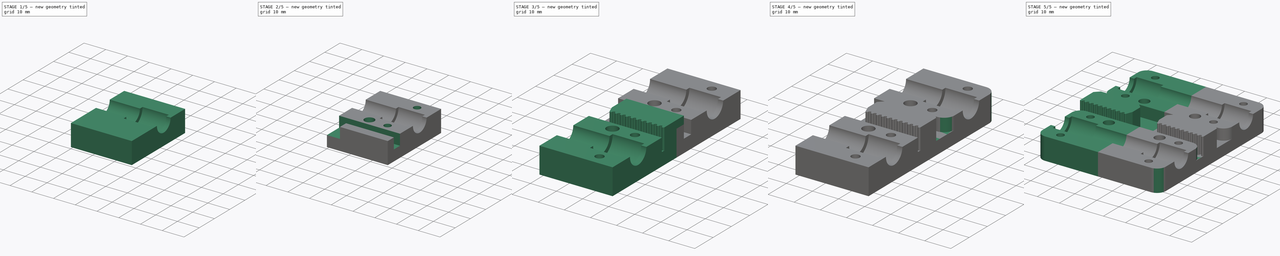
[diagram: build sequence overview — one tinted view per stage of 5, left to right]
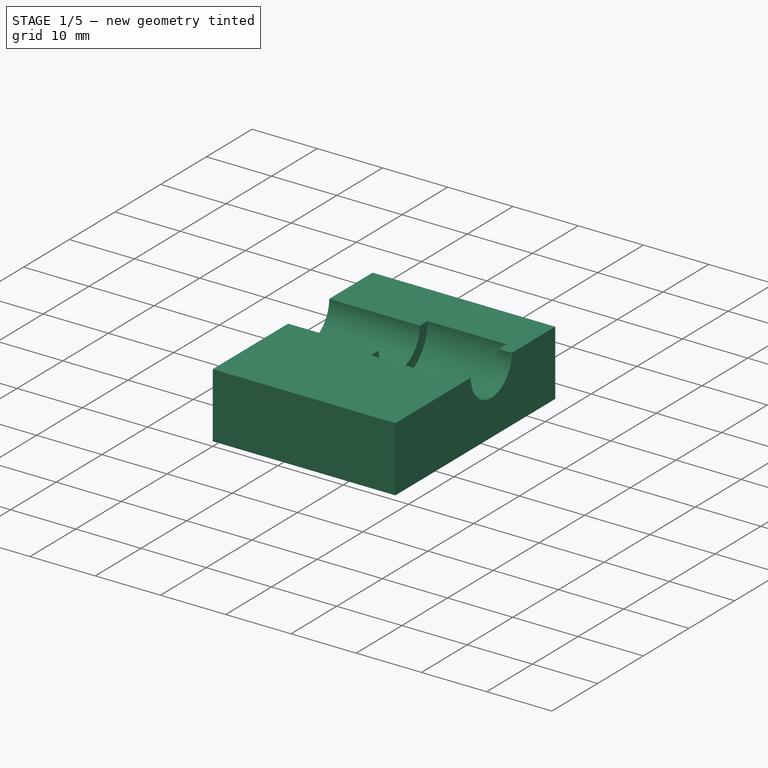
[diagram: stage 1 of 5 — iso view after this stage's code; geometry added in this stage tinted green]
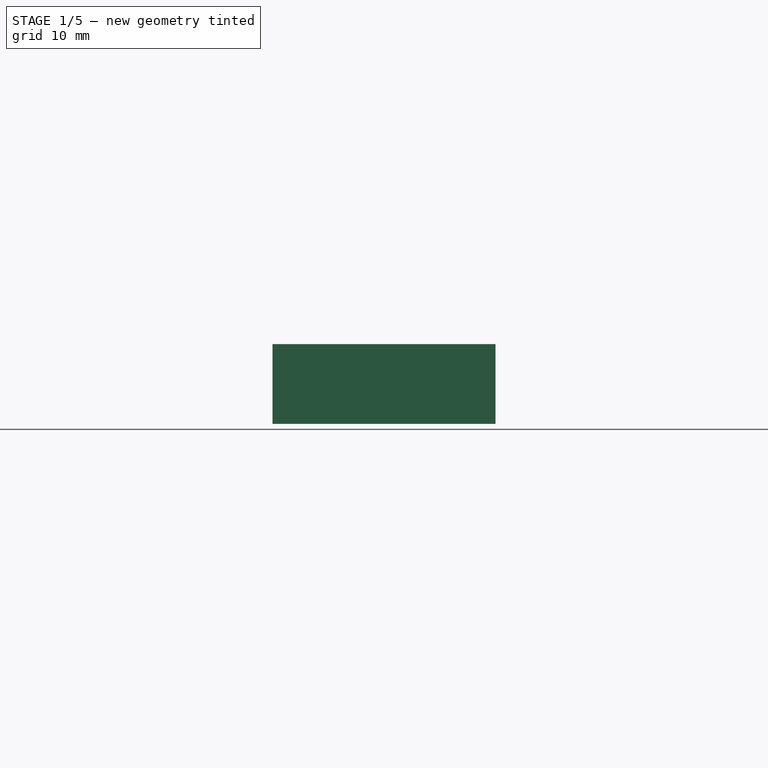
[diagram: stage 1 of 5 — front view after this stage's code; geometry added in this stage tinted green]
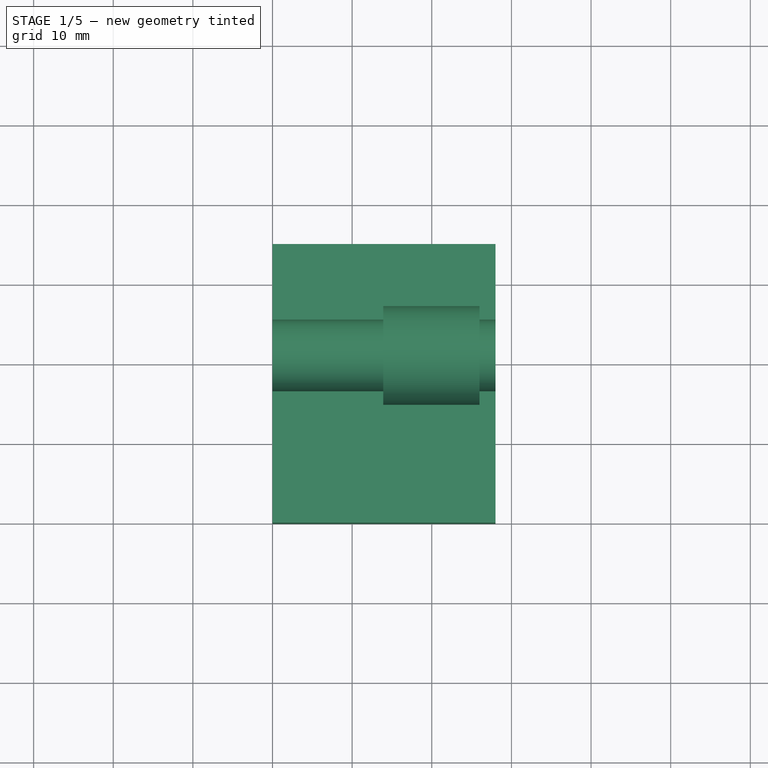
[diagram: stage 1 of 5 — top view after this stage's code; geometry added in this stage tinted green]
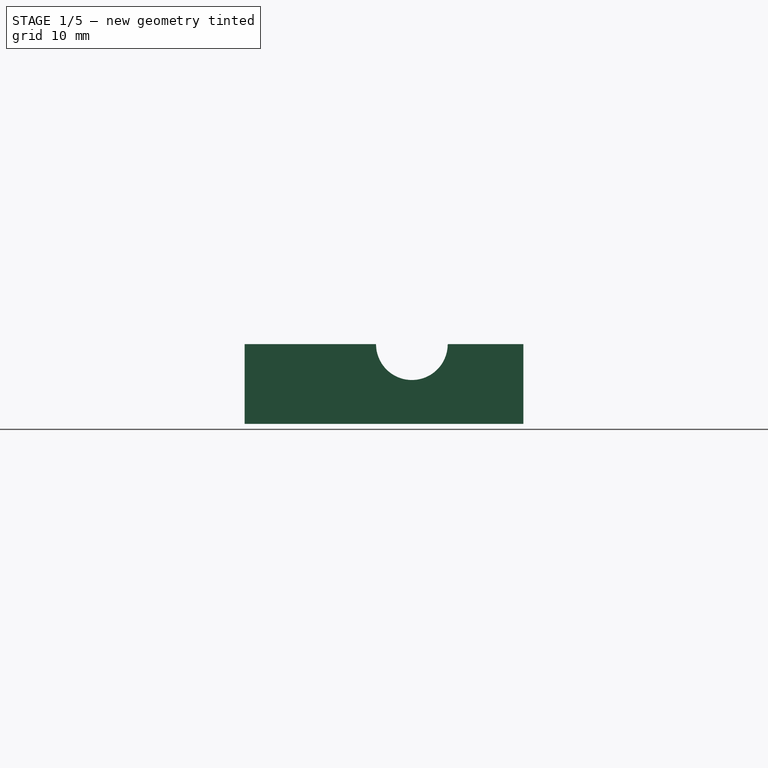
[diagram: stage 1 of 5 — right view after this stage's code; geometry added in this stage tinted green]
FCSTD DOCUMENT  (FreeCAD 0.14R3702 (Git))
Label: x-carrier_new
License: CC-BY 3.0
LicenseURL: http://creativecommons.org/licenses/by/3.0/
objects: Sketcher::SketchObject×9, PartDesign::Pocket×6, PartDesign::Fillet×4, PartDesign::Pad×3, Part::Mirroring×2, Part::MultiFuse×2, PartDesign::Chamfer×2, Part::Box×1
note: 38 computed .brp shape members not serialized (recipe doc carries the construction recipe); baked Part::Feature solids carry a one-line shape summary decoded from their .brp

FEATURE [Part::Box] Box  label="Cube"
  Height = 10
  Length = 28
  Width = 35
FEATURE [Sketcher::SketchObject] Sketch
  ExternalGeometry = -> [Box]
  Placement = pos=(28,0,0) rot=(0.57735,0.57735,0.57735;2.0944rad)
  Support = -> Box [Face2]
  sketch-geometry (2):
    g0: ArcOfCircle CenterX=21 CenterY=10 CenterZ=0 NormalX=0 NormalY=0 NormalZ=1 Radius=6.2 StartAngle=3.14159 EndAngle=6.28319
    g1: LineSegment StartX=14.8 StartY=10 StartZ=0 EndX=27.2 EndY=10 EndZ=0
  constraints (7):
    c: Radius(g0) = 6.2
    c: Coincident(g1,g0)
    c: Coincident(g1,g0)
    c: Horizontal(g1)
    c: PointOnObject(g0,g-3)
    c: PointOnObject(g0,g-3)
    c: DistanceX(g-2,g0) = 21
FEATURE [PartDesign::Pocket] Pocket
  Length = 14.1
  Sketch = -> Sketch
  Type = 0
FEATURE [Sketcher::SketchObject] Sketch001
  Placement = pos=(28,0,0) rot=(0.57735,0.57735,0.57735;2.0944rad)
  Support = -> Pocket [Face6]
  sketch-geometry (2):
    g0: ArcOfCircle CenterX=21 CenterY=10 CenterZ=0 NormalX=0 NormalY=0 NormalZ=1 Radius=6.2 StartAngle=3.14159 EndAngle=6.28319
    g1: LineSegment StartX=14.8 StartY=10 StartZ=0 EndX=27.2 EndY=10 EndZ=0
  constraints (3):
    c: Coincident(g1,g0)
    c: Coincident(g1,g0)
    c: Horizontal(g1)
FEATURE [PartDesign::Pad] Pad
  Length = 2
  Length2 = 100
  Reversed = true
  Sketch = -> Sketch001
  Type = 0
FEATURE [Sketcher::SketchObject] Sketch002
  ExternalGeometry = -> [Pad]
  Placement = pos=(28,0,0) rot=(0.57735,0.57735,0.57735;2.0944rad)
  Support = -> Pad [Face10]
  sketch-geometry (1):
    g0: Circle CenterX=21 CenterY=10 CenterZ=0 NormalX=0 NormalY=0 NormalZ=1 Radius=4.5
  constraints (2):
    c: Coincident(g0,g-3)
    c: Radius(g0) = 4.5
FEATURE [PartDesign::Pocket] Pocket001
  Length = 5
  Sketch = -> Sketch002
  Type = 1
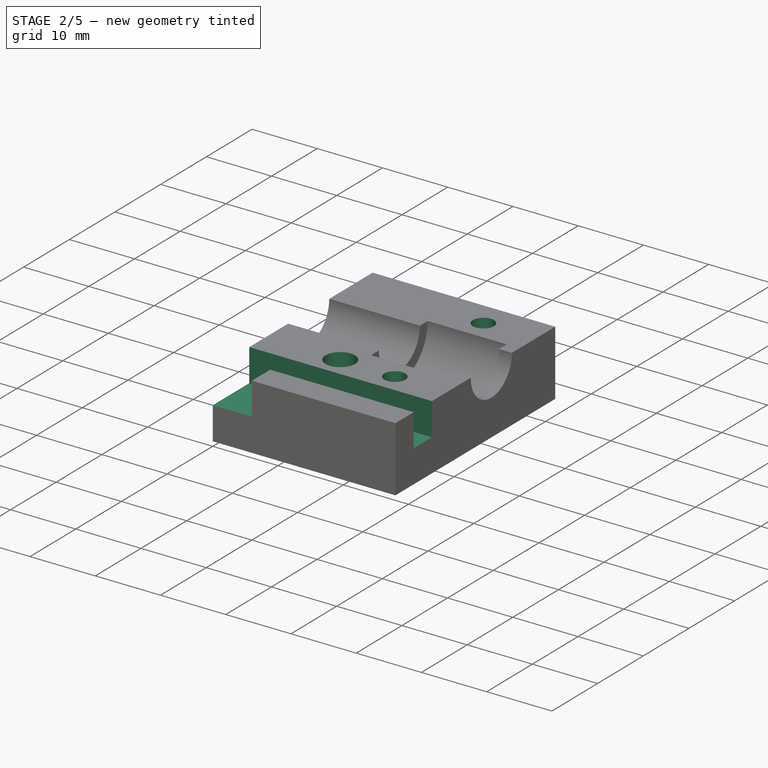
[diagram: stage 2 of 5 — iso view after this stage's code; geometry added in this stage tinted green]
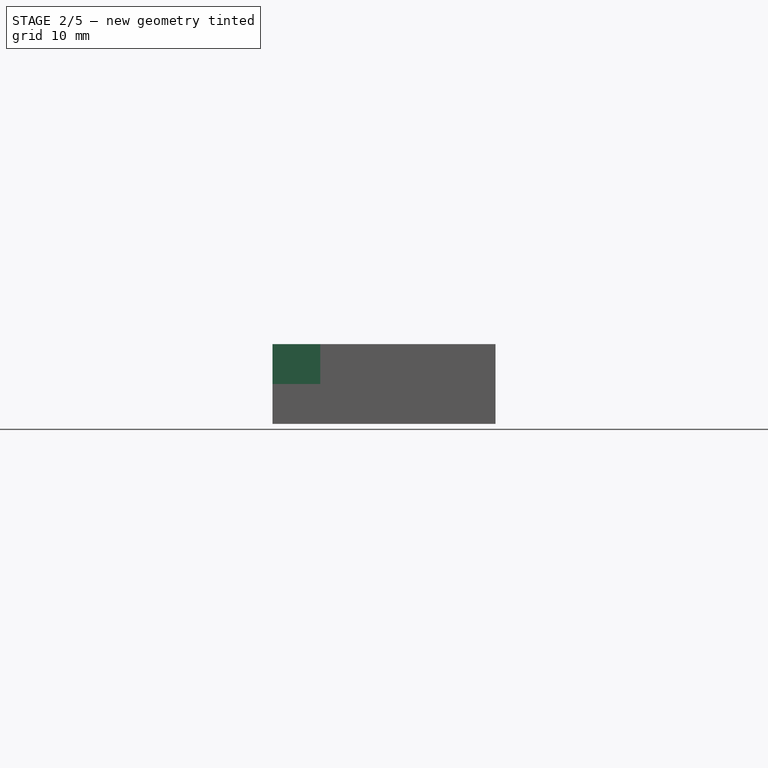
[diagram: stage 2 of 5 — front view after this stage's code; geometry added in this stage tinted green]
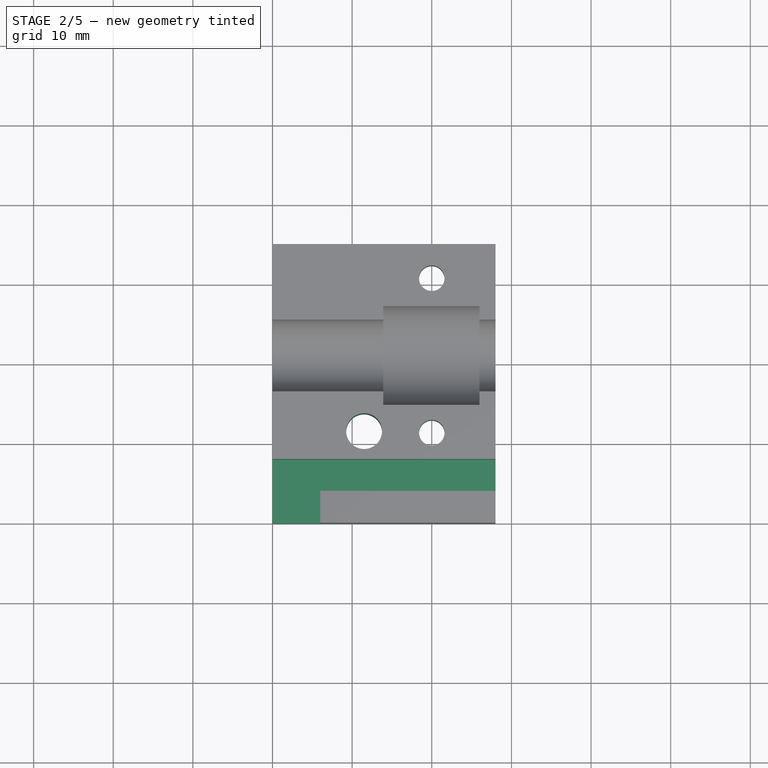
[diagram: stage 2 of 5 — top view after this stage's code; geometry added in this stage tinted green]
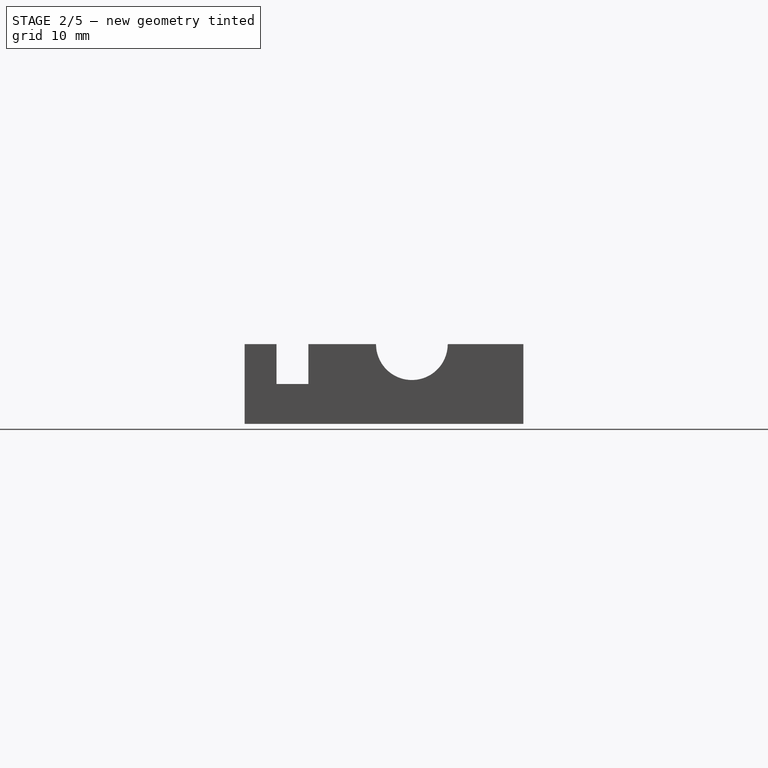
[diagram: stage 2 of 5 — right view after this stage's code; geometry added in this stage tinted green]
FEATURE [Sketcher::SketchObject] Sketch003
  Placement = pos=(0,0,10) rot=(0,0,1;0rad)
  Support = -> Pocket001 [Face2]
  sketch-geometry (3):
    g0: Circle CenterX=11.5 CenterY=11.5 CenterZ=0 NormalX=0 NormalY=0 NormalZ=1 Radius=2.25
    g1: Circle CenterX=20 CenterY=30.7 CenterZ=0 NormalX=0 NormalY=0 NormalZ=1 Radius=1.6
    g2: Circle CenterX=20 CenterY=11.3 CenterZ=0 NormalX=0 NormalY=0 NormalZ=1 Radius=1.6
  constraints (5):
    c: DistanceX(g-2,g0) = 11.5
    c: DistanceY(g-1,g0) = 11.5
    c: Radius(g0) = 2.25
    c: Equal(g1,g2)
    c: Radius(g1) = 1.6
FEATURE [PartDesign::Pocket] Pocket002
  Length = 5
  Sketch = -> Sketch003
  Type = 1
FEATURE [Sketcher::SketchObject] Sketch004
  Placement = pos=(0,0,0) rot=(1,0,0;3.14159rad)
  Support = -> Pocket002 [Face6]
  sketch-geometry (2):
    g0: Circle CenterX=20 CenterY=-10.8 CenterZ=0 NormalX=0 NormalY=0 NormalZ=1 Radius=2.9
    g1: Circle CenterX=20 CenterY=-31.2 CenterZ=0 NormalX=0 NormalY=0 NormalZ=1 Radius=2.9
  constraints (2):
    c: Equal(g1,g0)
    c: Radius(g0) = 2.9
FEATURE [PartDesign::Pocket] Pocket003
  Length = 3.5
  Sketch = -> Sketch004
  Type = 0
FEATURE [Sketcher::SketchObject] Sketch005
  Placement = pos=(0,0,10) rot=(0,0,1;0rad)
  Support = -> Pocket003 [Face2]
  sketch-geometry (4):
    g0: LineSegment StartX=0 StartY=8 StartZ=0 EndX=28 EndY=8 EndZ=0
    g1: LineSegment StartX=28 StartY=8 StartZ=0 EndX=28 EndY=4 EndZ=0
    g2: LineSegment StartX=28 StartY=4 StartZ=0 EndX=0 EndY=4 EndZ=0
    g3: LineSegment StartX=0 StartY=4 StartZ=0 EndX=0 EndY=8 EndZ=0
  constraints (10):
    c: Coincident(g0,g1)
    c: Coincident(g1,g2)
    c: Coincident(g2,g3)
    c: Coincident(g3,g0)
    c: Horizontal(g0)
    c: Horizontal(g2)
    c: Vertical(g1)
    c: Vertical(g3)
    c: PointOnObject(g0,g-2)
    c: Distance(g3) = 4
FEATURE [PartDesign::Pocket] Pocket004
  Length = 5
  Sketch = -> Sketch005
  Type = 0
FEATURE [Sketcher::SketchObject] Sketch006
  Placement = pos=(0,0,10) rot=(0,0,1;0rad)
  Support = -> Pocket004 [Face2]
  sketch-geometry (4):
    g0: LineSegment StartX=0 StartY=0 StartZ=0 EndX=6 EndY=0 EndZ=0
    g1: LineSegment StartX=6 StartY=0 StartZ=0 EndX=6 EndY=4 EndZ=0
    g2: LineSegment StartX=6 StartY=4 StartZ=0 EndX=0 EndY=4 EndZ=0
    g3: LineSegment StartX=0 StartY=4 StartZ=0 EndX=0 EndY=0 EndZ=0
  constraints (10):
    c: Coincident(g0,g1)
    c: Coincident(g1,g2)
    c: Coincident(g2,g3)
    c: Coincident(g3,g0)
    c: Horizontal(g0)
    c: Horizontal(g2)
    c: Vertical(g1)
    c: Vertical(g3)
    c: Coincident(g0,g-1)
    c: Distance(g0) = 6
FEATURE [PartDesign::Pocket] Pocket005
  Length = 5
  Sketch = -> Sketch006
  Type = 0
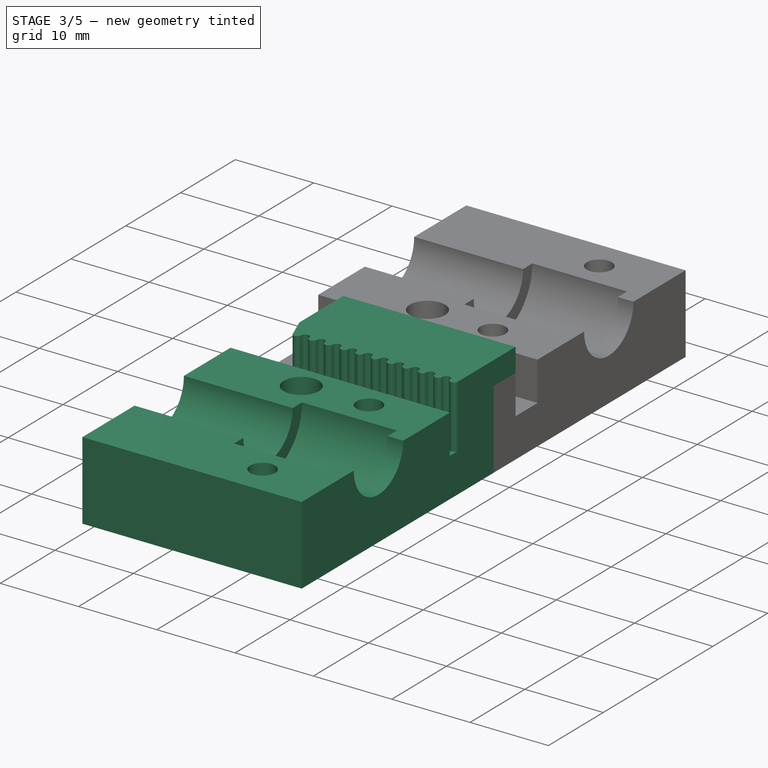
[diagram: stage 3 of 5 — iso view after this stage's code; geometry added in this stage tinted green]
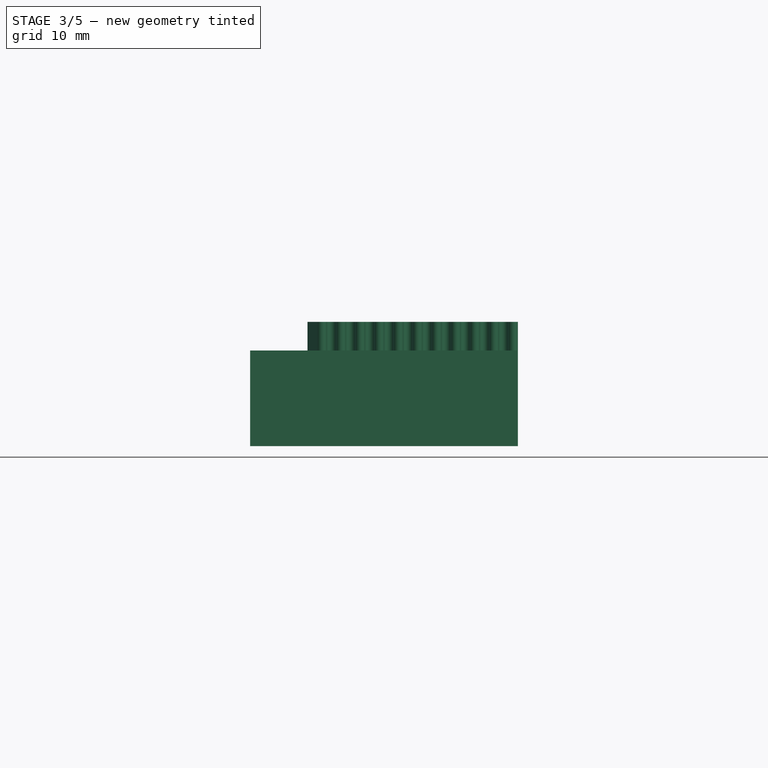
[diagram: stage 3 of 5 — front view after this stage's code; geometry added in this stage tinted green]
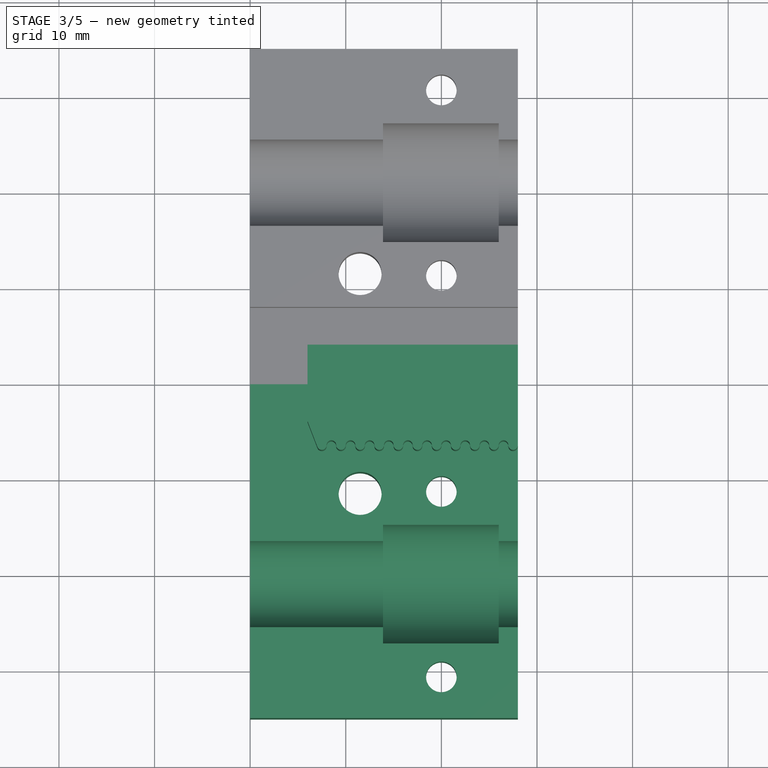
[diagram: stage 3 of 5 — top view after this stage's code; geometry added in this stage tinted green]
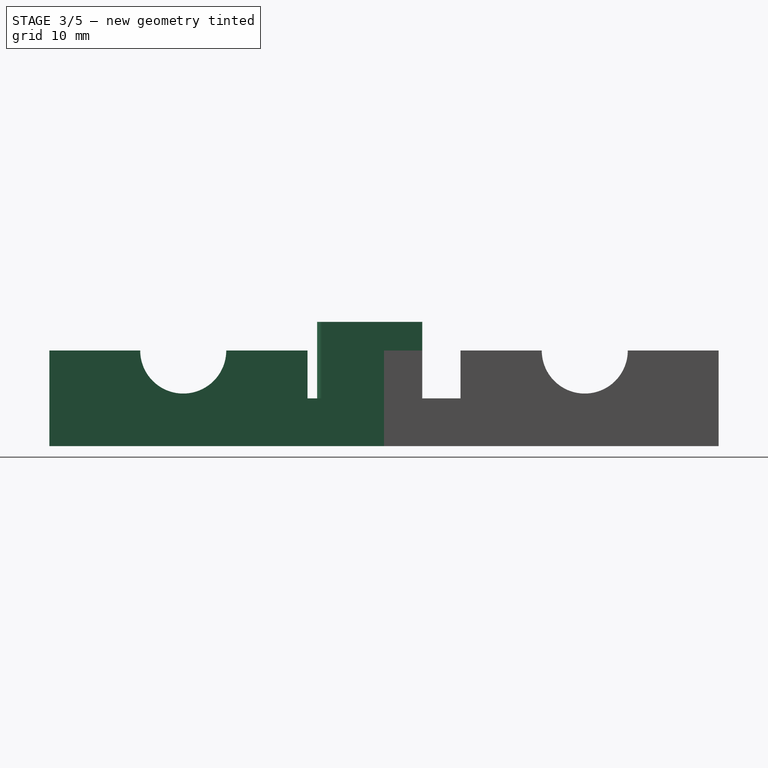
[diagram: stage 3 of 5 — right view after this stage's code; geometry added in this stage tinted green]
FEATURE [Sketcher::SketchObject] Sketch007
  Placement = pos=(0,0,10) rot=(0,0,1;0rad)
  Support = -> Pocket005 [Face26]
  sketch-geometry (4):
    g0: LineSegment StartX=6 StartY=4 StartZ=0 EndX=28 EndY=4 EndZ=0
    g1: LineSegment StartX=28 StartY=4 StartZ=0 EndX=28 EndY=0 EndZ=0
    g2: LineSegment StartX=28 StartY=0 StartZ=0 EndX=6 EndY=0 EndZ=0
    g3: LineSegment StartX=6 StartY=0 StartZ=0 EndX=6 EndY=4 EndZ=0
  constraints (8):
    c: Coincident(g0,g1)
    c: Coincident(g1,g2)
    c: Coincident(g2,g3)
    c: Coincident(g3,g0)
    c: Horizontal(g0)
    c: Horizontal(g2)
    c: Vertical(g1)
    c: Vertical(g3)
FEATURE [PartDesign::Pad] Pad001
  Length = 3
  Length2 = 100
  Sketch = -> Sketch007
  Type = 0
FEATURE [Part::Mirroring] Part__Mirroring  label="Pad001 (Mirror #1)"
  Base = (0,0,0)
  Normal = (0,1,0)
  Source = -> Pad001
FEATURE [Part::MultiFuse] Fusion
  Shapes = -> [Pad001,Part__Mirroring]
FEATURE [Sketcher::SketchObject] Sketch008
  ExternalGeometry = -> [Fusion]
  Placement = pos=(0,0,13) rot=(0,0,1;0rad)
  Support = -> Fusion [Face54]
  sketch-geometry (25):
    g0: LineSegment [constr] StartX=6 StartY=-6.5 StartZ=0 EndX=28 EndY=-6.5 EndZ=0
    g1: ArcOfCircle CenterX=11.5 CenterY=-6.5 CenterZ=0 NormalX=0 NormalY=0 NormalZ=1 Radius=0.5 StartAngle=3.14159 EndAngle=6.28319
    g2: ArcOfCircle CenterX=12.5 CenterY=-6.5 CenterZ=0 NormalX=0 NormalY=0 NormalZ=1 Radius=0.5 StartAngle=0 EndAngle=3.14159
    g3: ArcOfCircle CenterX=13.5 CenterY=-6.5 CenterZ=0 NormalX=0 NormalY=0 NormalZ=1 Radius=0.5 StartAngle=3.14159 EndAngle=6.28319
    g4: ArcOfCircle CenterX=14.5 CenterY=-6.5 CenterZ=0 NormalX=0 NormalY=0 NormalZ=1 Radius=0.5 StartAngle=0 EndAngle=3.14159
    g5: ArcOfCircle CenterX=15.5 CenterY=-6.5 CenterZ=0 NormalX=0 NormalY=0 NormalZ=1 Radius=0.5 StartAngle=3.14159 EndAngle=6.28319
    g6: ArcOfCircle CenterX=16.5 CenterY=-6.5 CenterZ=0 NormalX=0 NormalY=0 NormalZ=1 Radius=0.5 StartAngle=0 EndAngle=3.14159
    g7: ArcOfCircle CenterX=17.5 CenterY=-6.5 CenterZ=0 NormalX=0 NormalY=0 NormalZ=1 Radius=0.5 StartAngle=3.14159 EndAngle=6.28319
    g8: ArcOfCircle CenterX=18.5 CenterY=-6.5 CenterZ=0 NormalX=0 NormalY=0 NormalZ=1 Radius=0.5 StartAngle=0 EndAngle=3.14159
    g9: ArcOfCircle CenterX=19.5 CenterY=-6.5 CenterZ=0 NormalX=0 NormalY=0 NormalZ=1 Radius=0.5 StartAngle=3.14159 EndAngle=6.28319
    g10: ArcOfCircle CenterX=20.5 CenterY=-6.5 CenterZ=0 NormalX=0 NormalY=0 NormalZ=1 Radius=0.5 StartAngle=0 EndAngle=3.14159
    g11: ArcOfCircle CenterX=21.5 CenterY=-6.5 CenterZ=0 NormalX=0 NormalY=0 NormalZ=1 Radius=0.5 StartAngle=3.14159 EndAngle=6.28319
    g12: ArcOfCircle CenterX=22.5 CenterY=-6.5 CenterZ=0 NormalX=0 NormalY=0 NormalZ=1 Radius=0.5 StartAngle=0 EndAngle=3.14159
    g13: ArcOfCircle CenterX=23.5 CenterY=-6.5 CenterZ=0 NormalX=0 NormalY=0 NormalZ=1 Radius=0.5 StartAngle=3.14159 EndAngle=6.28319
    g14: ArcOfCircle CenterX=24.5 CenterY=-6.5 CenterZ=0 NormalX=0 NormalY=0 NormalZ=1 Radius=0.5 StartAngle=0 EndAngle=3.14159
    g15: ArcOfCircle CenterX=25.5 CenterY=-6.5 CenterZ=0 NormalX=0 NormalY=0 NormalZ=1 Radius=0.5 StartAngle=3.14159 EndAngle=6.28319
    g16: ArcOfCircle CenterX=26.5 CenterY=-6.5 CenterZ=0 NormalX=0 NormalY=0 NormalZ=1 Radius=0.5 StartAngle=0 EndAngle=3.14159
    g17: ArcOfCircle CenterX=27.5 CenterY=-6.5 CenterZ=0 NormalX=0 NormalY=0 NormalZ=1 Radius=0.5 StartAngle=3.14159 EndAngle=6.28319
    g18: ArcOfCircle CenterX=10.5 CenterY=-6.5 CenterZ=0 NormalX=0 NormalY=0 NormalZ=1 Radius=0.5 StartAngle=0 EndAngle=3.14159
    g19: ArcOfCircle CenterX=9.5 CenterY=-6.5 CenterZ=0 NormalX=0 NormalY=0 NormalZ=1 Radius=0.5 StartAngle=3.14159 EndAngle=6.28319
    g20: ArcOfCircle CenterX=8.5 CenterY=-6.5 CenterZ=0 NormalX=0 NormalY=0 NormalZ=1 Radius=0.5 StartAngle=0 EndAngle=3.14159
    g21: ArcOfCircle CenterX=7.5 CenterY=-6.5 CenterZ=0 NormalX=0 NormalY=0 NormalZ=1 Radius=0.5 StartAngle=3.50965 EndAngle=6.28319
    g22: LineSegment StartX=6 StartY=-4 StartZ=0 EndX=7.03349 EndY=-6.6799 EndZ=0
    g23: LineSegment StartX=6 StartY=-4 StartZ=0 EndX=28 EndY=-4 EndZ=0
    g24: LineSegment StartX=28 StartY=-4 StartZ=0 EndX=28 EndY=-6.5 EndZ=0
  constraints (95):
    c: Horizontal(g0)
    c: PointOnObject(g0,g-4)
    c: PointOnObject(g0,g-3)
    c: Distance(g-3,g0) = 1.5
    c: Coincident(g2,g1)
    c: Coincident(g3,g2)
    c: Coincident(g4,g3)
    c: Coincident(g5,g4)
    c: Coincident(g6,g5)
    c: Coincident(g7,g6)
    c: Coincident(g8,g7)
    c: Coincident(g9,g8)
    c: Coincident(g10,g9)
    c: Coincident(g11,g10)
    c: Coincident(g12,g11)
    c: Coincident(g13,g12)
    c: Coincident(g14,g13)
    c: Coincident(g15,g14)
    c: Coincident(g16,g15)
    c: PointOnObject(g1,g0)
    c: PointOnObject(g2,g0)
    c: PointOnObject(g3,g0)
    c: PointOnObject(g4,g0)
    c: PointOnObject(g5,g0)
    c: PointOnObject(g6,g0)
    c: PointOnObject(g7,g0)
    c: PointOnObject(g8,g0)
    c: PointOnObject(g9,g0)
    c: PointOnObject(g10,g0)
    c: PointOnObject(g11,g0)
    c: PointOnObject(g12,g0)
    c: PointOnObject(g13,g0)
    c: PointOnObject(g14,g0)
    c: PointOnObject(g16,g0)
    c: Equal(g1,g2)
    c: PointOnObject(g1,g0)
    c: PointOnObject(g2,g0)
    c: Equal(g2,g3)
    c: Equal(g3,g4)
    c: Equal(g4,g5)
    c: Equal(g5,g6)
    c: PointOnObject(g4,g0)
    c: PointOnObject(g5,g0)
    c: PointOnObject(g7,g0)
    c: PointOnObject(g6,g0)
    c: PointOnObject(g8,g0)
    c: PointOnObject(g9,g0)
    c: PointOnObject(g10,g0)
    c: PointOnObject(g11,g0)
    c: PointOnObject(g12,g0)
    c: PointOnObject(g13,g0)
    c: PointOnObject(g14,g0)
    c: Equal(g6,g7)
    c: Equal(g7,g8)
    c: Equal(g8,g9)
    c: Equal(g9,g10)
    c: Equal(g10,g11)
    c: Equal(g11,g12)
    c: Equal(g12,g13)
    c: Equal(g13,g14)
    c: PointOnObject(g15,g0)
    c: PointOnObject(g15,g0)
    c: PointOnObject(g16,g0)
    c: Equal(g14,g15)
    c: Equal(g15,g16)
    c: PointOnObject(g17,g0)
    c: Coincident(g17,g16)
    c: Coincident(g17,g0)
    c: Equal(g17,g16)
    c: PointOnObject(g18,g0)
    c: PointOnObject(g18,g0)
    c: PointOnObject(g18,g0)
    c: Coincident(g1,g18)
    c: PointOnObject(g19,g0)
    c: Coincident(g19,g18)
    c: PointOnObject(g19,g0)
    c: PointOnObject(g20,g0)
    c: Coincident(g20,g19)
    c: PointOnObject(g20,g0)
    c: PointOnObject(g21,g0)
    c: Coincident(g21,g20)
    c: Equal(g1,g18)
    c: Equal(g18,g19)
    c: Equal(g19,g20)
    c: Equal(g20,g21)
    c: DistanceX(g21,g19) = 2
    c: PointOnObject(g3,g0)
    c: Coincident(g22,g-4)
    c: Coincident(g22,g21)
    c: Tangent(g21,g22)
    c: Coincident(g23,g22)
    c: Horizontal(g23)
    c: Coincident(g23,g-3)
    c: Coincident(g24,g0)
    c: Coincident(g24,g23)
FEATURE [PartDesign::Pad] Pad002
  Length = 8
  Length2 = 100
  Reversed = true
  Sketch = -> Sketch008
  Type = 0
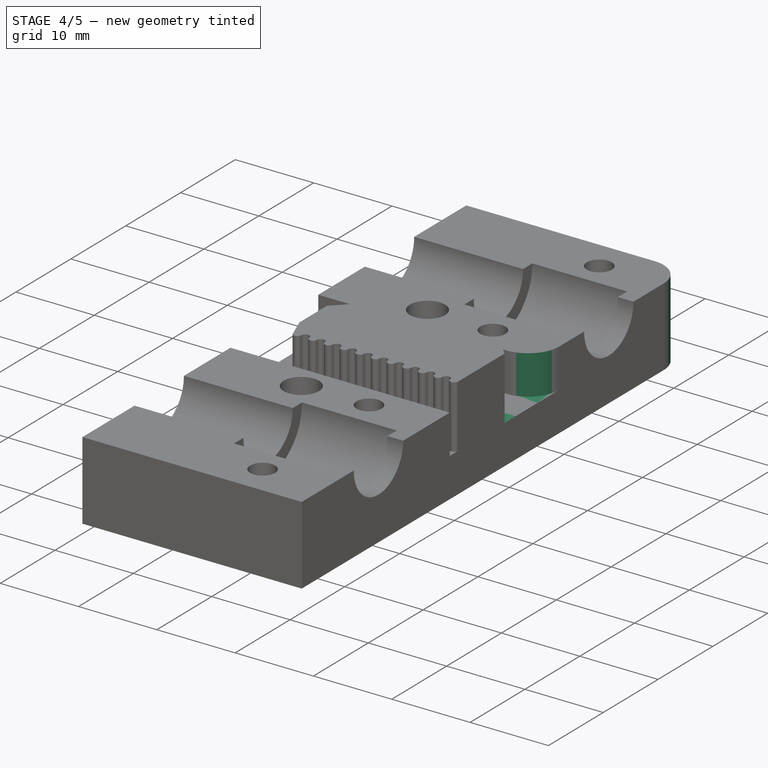
[diagram: stage 4 of 5 — iso view after this stage's code; geometry added in this stage tinted green]
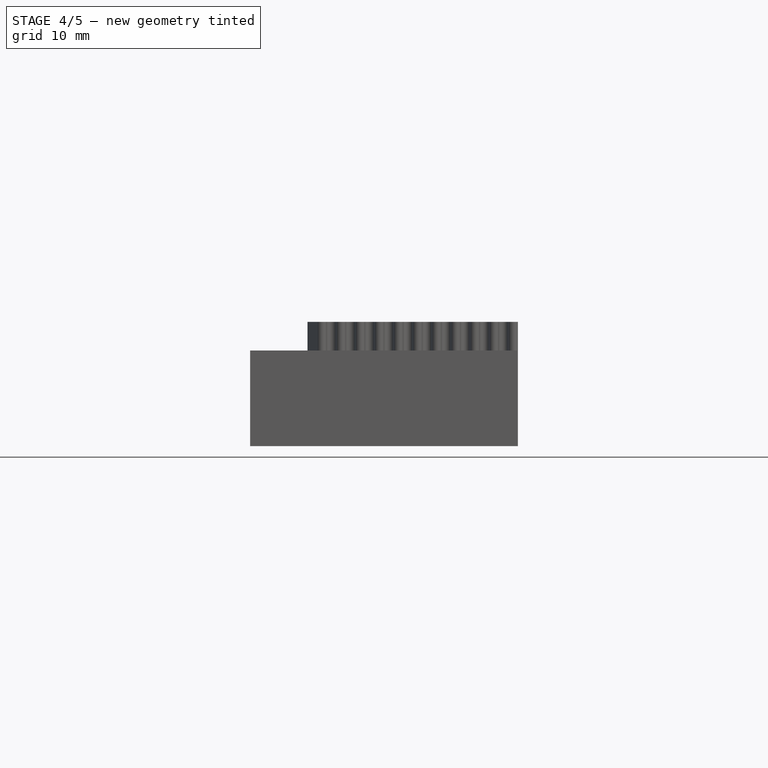
[diagram: stage 4 of 5 — front view after this stage's code; geometry added in this stage tinted green]
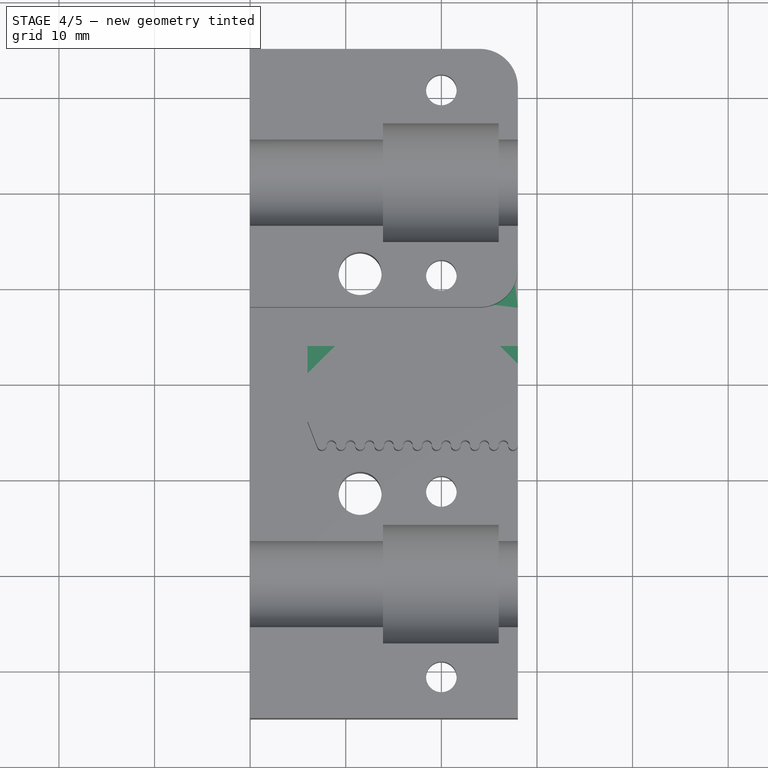
[diagram: stage 4 of 5 — top view after this stage's code; geometry added in this stage tinted green]
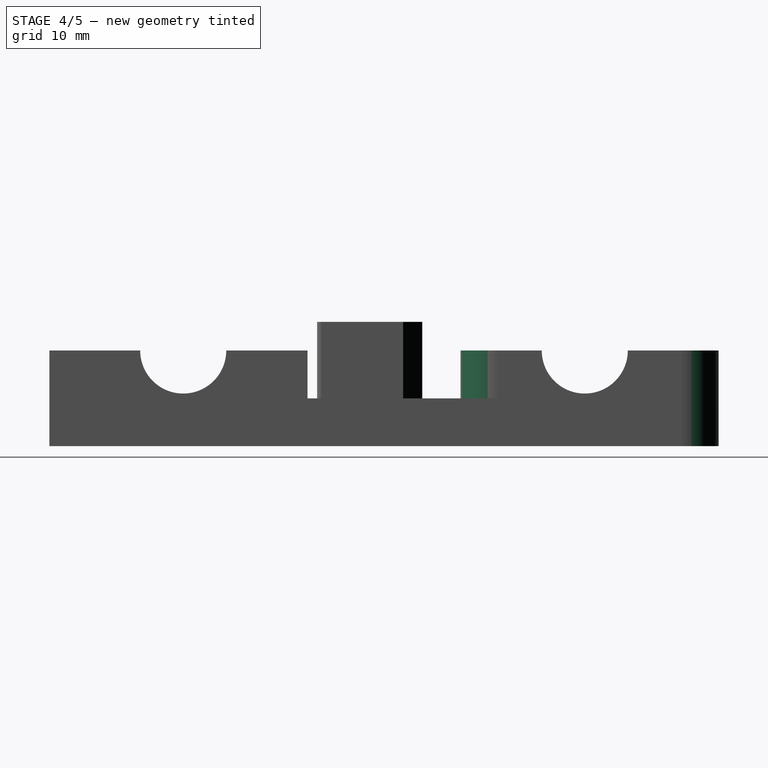
[diagram: stage 4 of 5 — right view after this stage's code; geometry added in this stage tinted green]
FEATURE [PartDesign::Fillet] Fillet
  Base = -> Pad002 [Edge20]
  Radius = 4
FEATURE [PartDesign::Fillet] Fillet001
  Base = -> Fillet [Edge10]
  Radius = 4
FEATURE [PartDesign::Chamfer] Chamfer
  Base = -> Fillet001 [Edge8]
  Size = 2
FEATURE [PartDesign::Chamfer] Chamfer001
  Base = -> Chamfer [Edge71]
  Size = 3
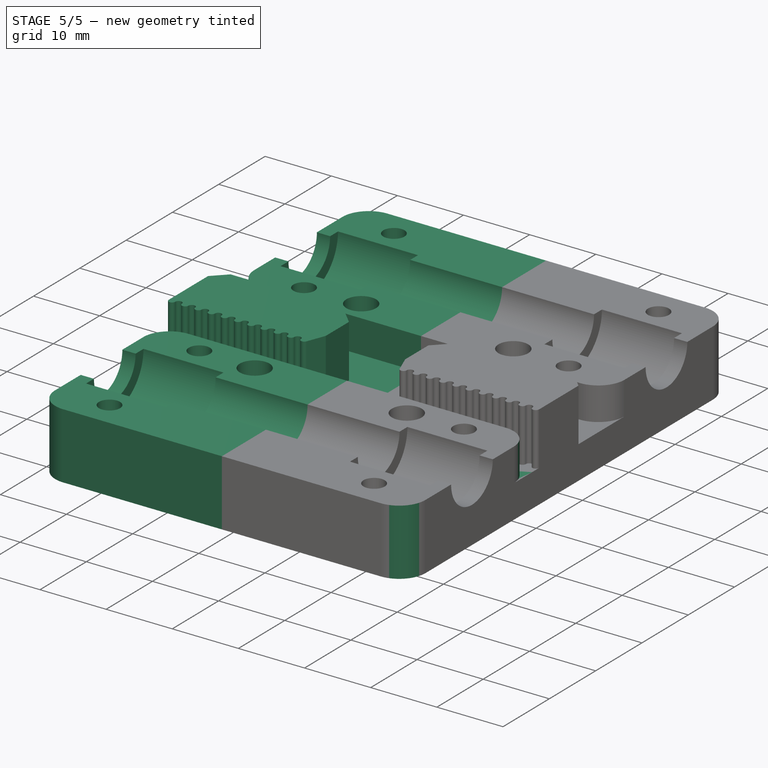
[diagram: stage 5 of 5 — iso view after this stage's code; geometry added in this stage tinted green]
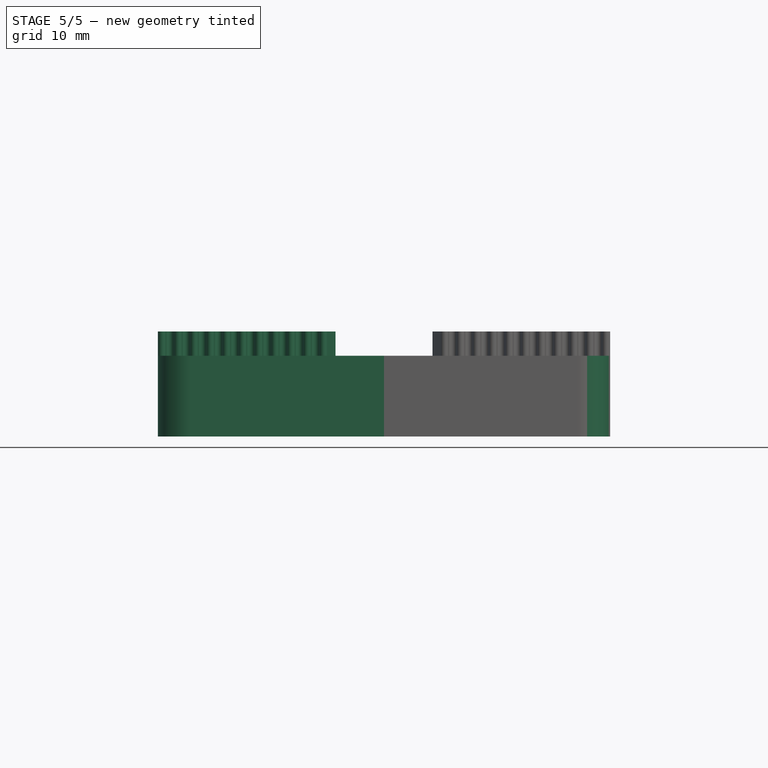
[diagram: stage 5 of 5 — front view after this stage's code; geometry added in this stage tinted green]
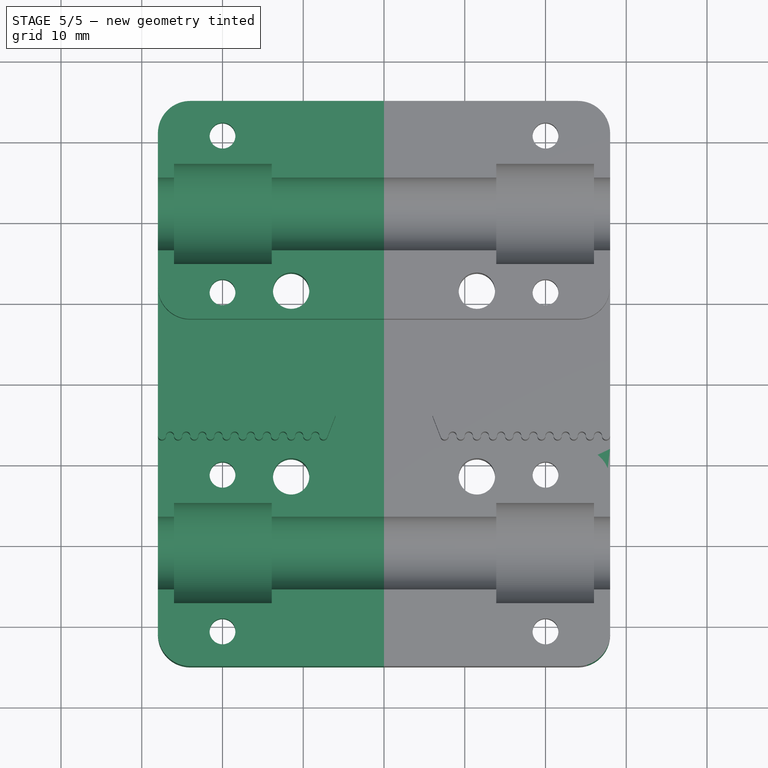
[diagram: stage 5 of 5 — top view after this stage's code; geometry added in this stage tinted green]
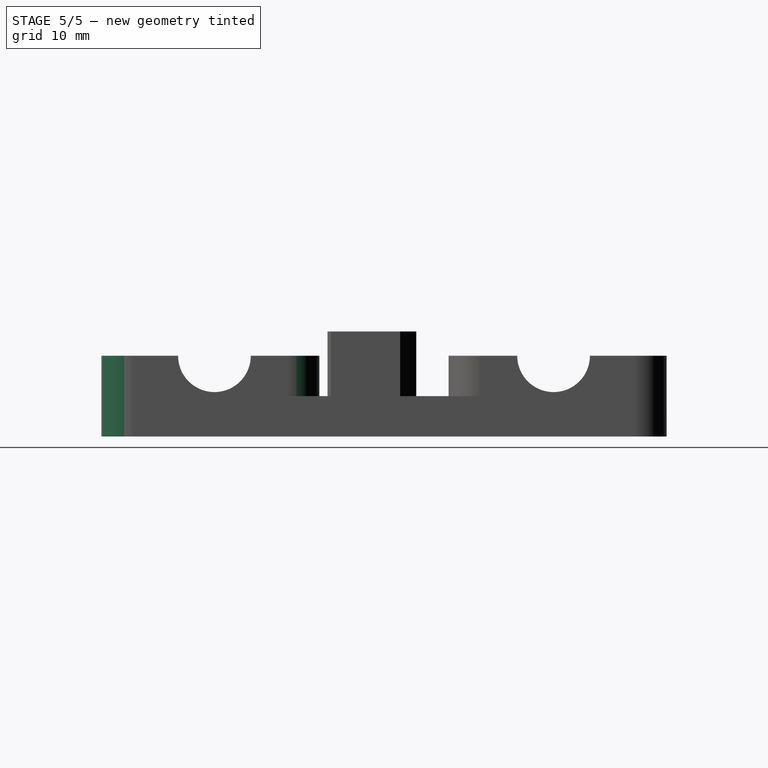
[diagram: stage 5 of 5 — right view after this stage's code; geometry added in this stage tinted green]
FEATURE [PartDesign::Fillet] Fillet002
  Base = -> Chamfer001 [Edge58]
  Radius = 4
FEATURE [PartDesign::Fillet] Fillet003
  Base = -> Fillet002 [Edge7]
  Radius = 4
FEATURE [Part::Mirroring] Part__Mirroring001  label="Fillet003 (Mirror #2)"
  Base = (0,0,0)
  Normal = (1,0,0)
  Source = -> Fillet003
FEATURE [Part::MultiFuse] Fusion001
  Shapes = -> [Part__Mirroring001,Fillet003]
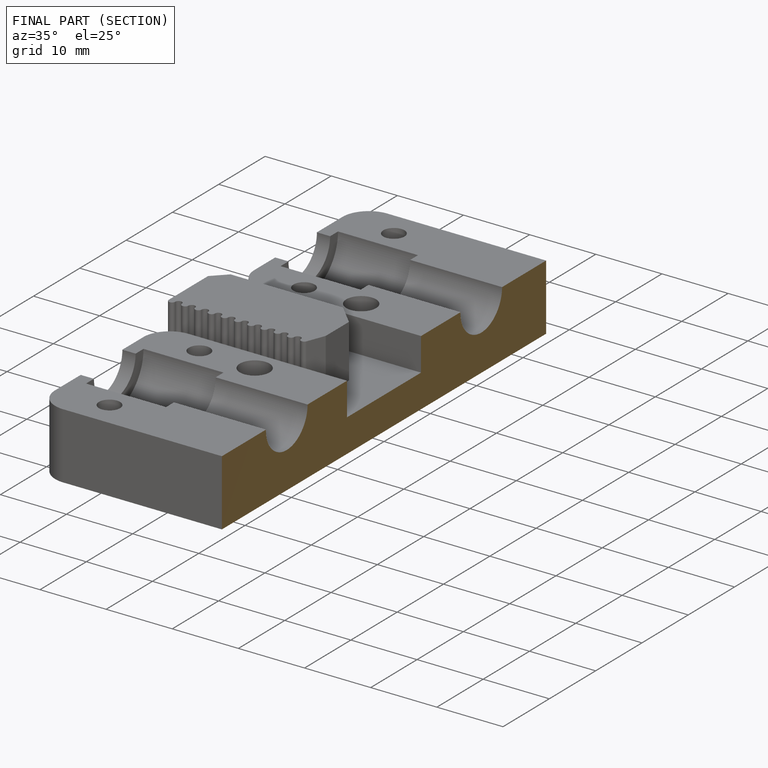
[diagram: finished part — half-section view (interior)]
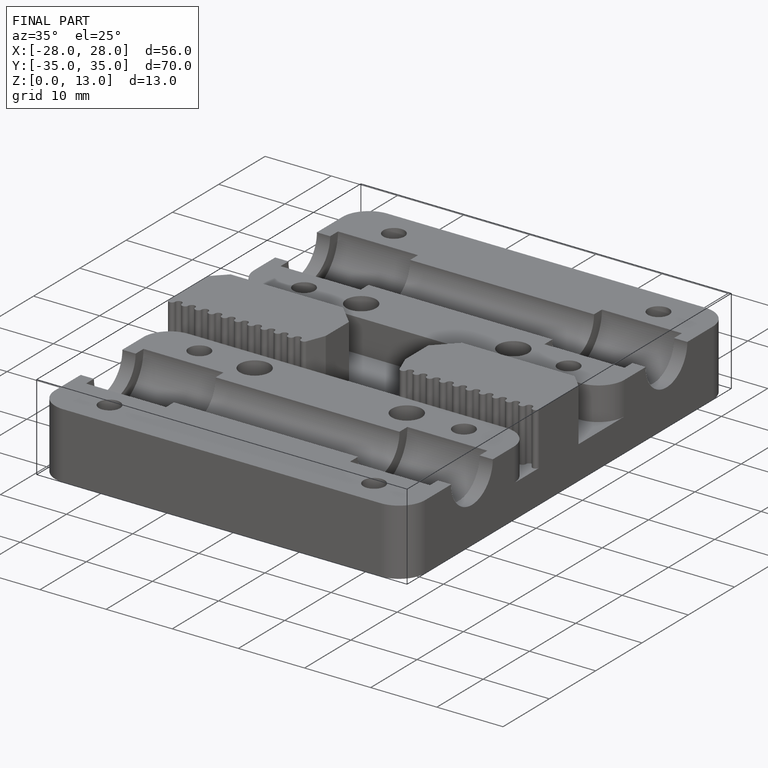
[diagram: finished part — iso view with bounding-box wireframe]
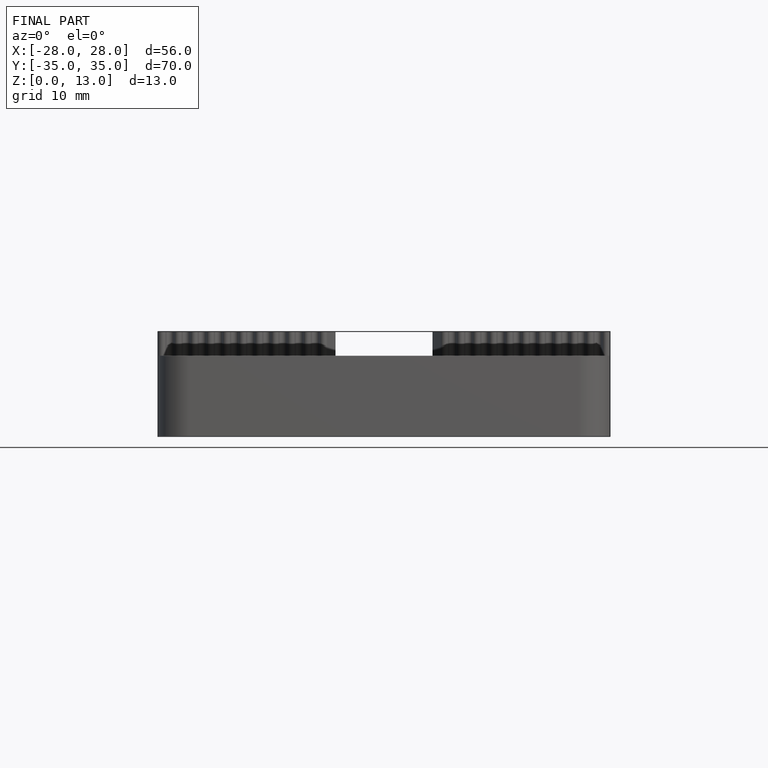
[diagram: finished part — front view with bounding-box wireframe]
